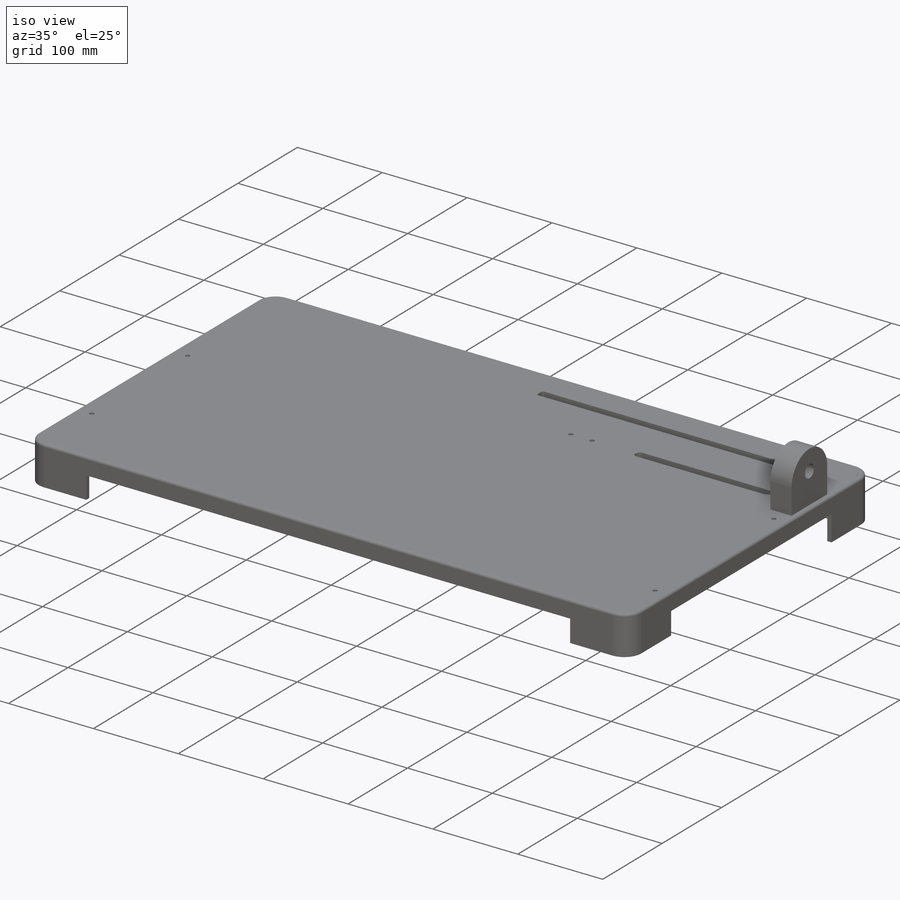
[diagram: iso view]
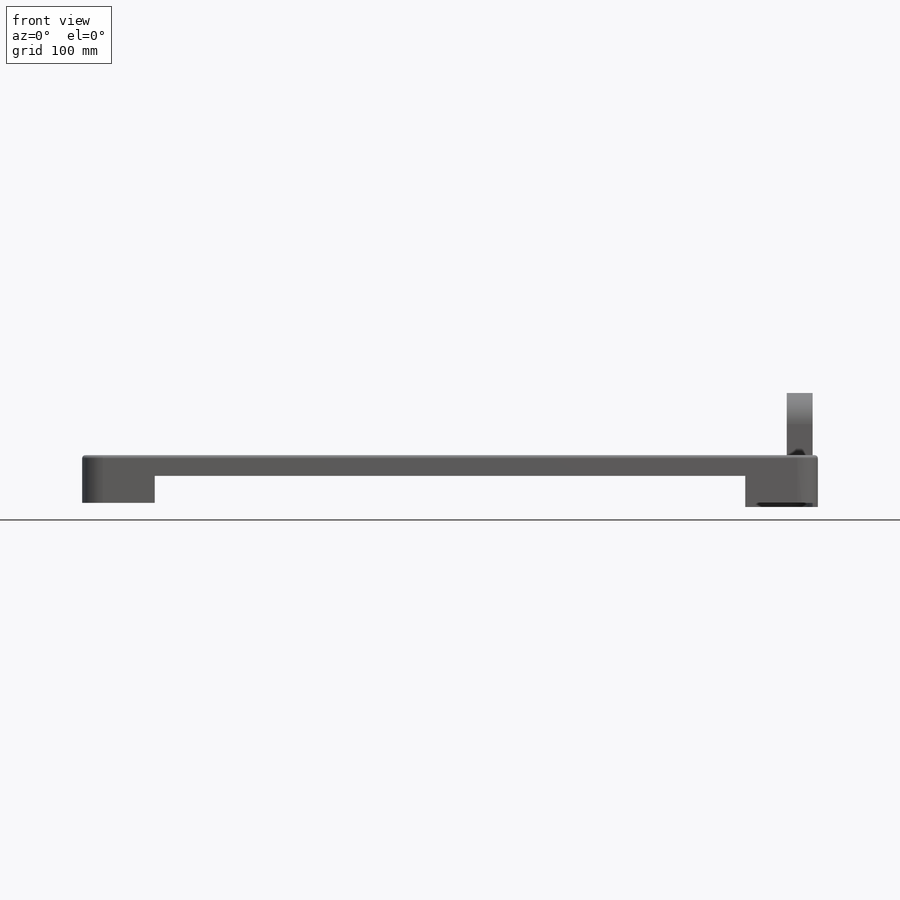
[diagram: front view]
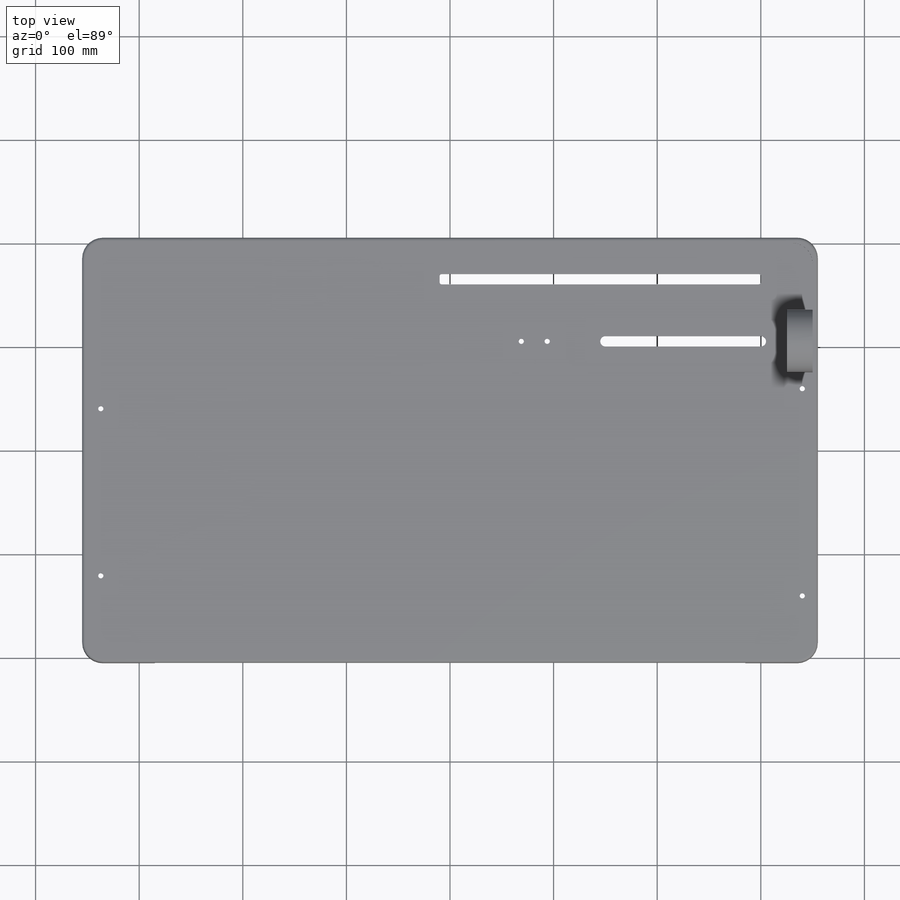
[diagram: top view]
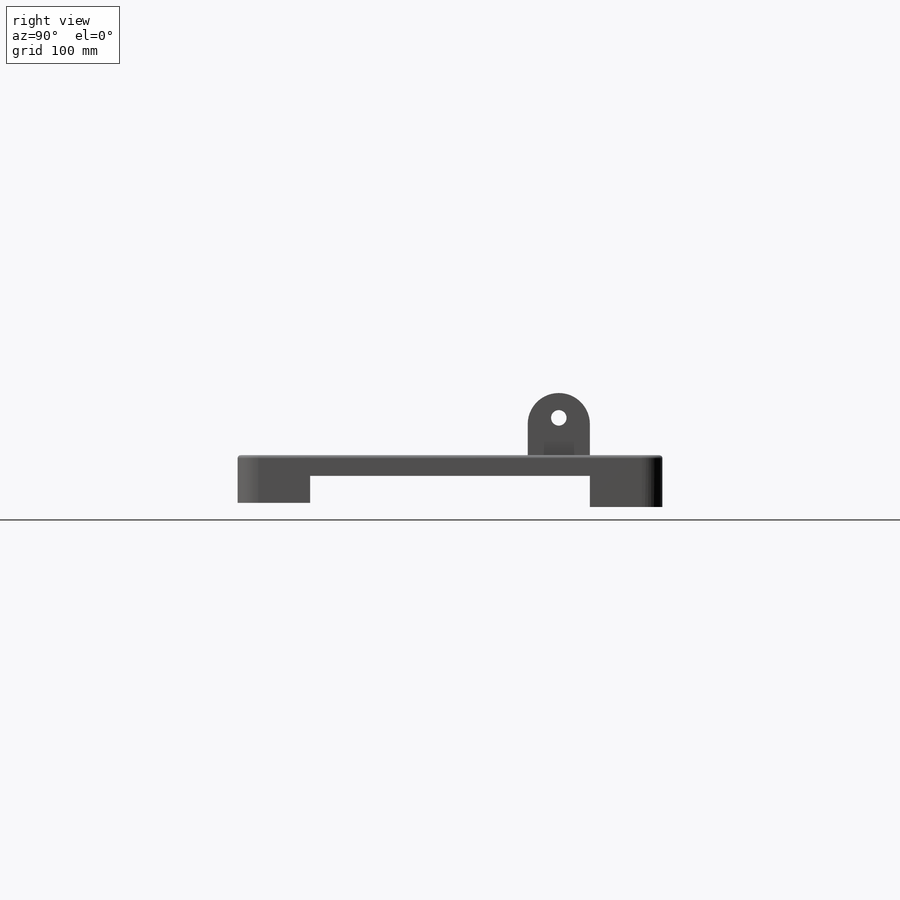
[diagram: right view]
SOLIDWORKS PART (.sldprt)
format: sldprt  version: not decoded by parser v0  size: 691,712 bytes
history: native  units: mm
features: sketch x17, fillet x8, extrude x6, thread x6, cut_extrude x3, hole x3, mirror x2, pattern_linear x2, material x1, plane x1 (+17 scaffold rows collapsed)
feature tree (66):
  scaffold x17  (default folders/planes/origin — collapsed)
  material  "Cast Alloy Steel"
  sketch  "Sketch1"  dims[D1=700.0mm D2=400.0mm D3=350.0mm D4=200.0mm]
  extrude  "Boss-Extrude1"  Depth=6mm
  sketch  "Sketch3"  dims[D1=310.0mm D2=10.0mm D3=30.0mm D4=50.0mm]
  cut_extrude  "Cut-Extrude1"  Depth=26mm
  fillet  "Fillet1"  Radius=2mm
  sketch  "Sketch4"  dims[D1=155.0mm]
  sketch  "Sketch5"
  plane  "Plane1"  Offset=165mm
  fillet  "Fillet2"  Radius=20mm
  sketch  "Sketch8"  dims[D3=20.0mm D1=5.0mm D2=5.0mm D4=50.0mm D5=50.0mm]
  extrude  "Boss-Extrude2"  Depth=40mm
  mirror  "Mirror3"
  mirror  "Mirror6"
  sketch  "Sketch9"  dims[D5=20.0mm D1=5.0mm D2=5.0mm D3=70.0mm D4=70.0mm]
  extrude  "Boss-Extrude3"  Depth=50mm
  sketch  "Sketch10"
  extrude  "Boss-Extrude4"  Depth=20mm
  sketch  "Sketch11"
  extrude  "Boss-Extrude5"  Depth=20mm
  pattern_linear  "LPattern1"  Count1=1 Count2=2 Spacing1=705mm Spacing2=405mm
  pattern_linear  "LPattern2"  Count1=2 Count2=1 Spacing1=705mm Spacing2=405mm
  fillet  "Fillet3"  Radius=3mm
  fillet  "Fillet4"  Radius=3mm
  fillet  "Fillet5"  Radius=3mm
  fillet  "Fillet6"  Radius=3mm
  fillet  "Fillet7"  Radius=3mm
  hole  "Ø5.0 (5) Diameter Hole1"  Diameter=5mm Depth=11mm
  sketch  "Sketch13"  dims[D1=25.0mm D2=78.81mm D3=55.0mm]
  sketch  "Sketch12"  dims[hole-wizard template sketch: 50 standard entries collapsed; hole parameters above]
  thread  "Cosmetic Thread1"  Diameter=6mm  [1 undecoded]
  sketch  "Sketch14"  dims[D1=60.0mm D2=25.0mm D3=30.0mm D4=0.0mm]
  extrude  "Boss-Extrude6"  Depth=60mm
  fillet  "Fillet8"  Radius=30mm
  sketch  "Sketch15"  dims[D1=5.0mm D2=150.0mm D3=5.0mm D4=10.0mm]
  cut_extrude  "Cut-Extrude2"  Depth=60mm
  sketch  "Sketch16"  dims[D1=15.0mm D2=30.0mm D3=36.0mm]
  cut_extrude  "Cut-Extrude3"  [1 undecoded]
  thread  "Cosmetic Thread2"  Diameter=18mm  [1 undecoded]
  hole  "Ø5.0 (5) Diameter Hole2"  Diameter=5mm Depth=11mm
  sketch  "Sketch18"  dims[D1=12.0mm D2=61.33mm D3=200.0mm D4=12.0mm]
  sketch  "Sketch17"  dims[hole-wizard template sketch: 50 standard entries collapsed; hole parameters above]
  thread  "Cosmetic Thread3"  Diameter=6mm  [1 undecoded]
  thread  "Cosmetic Thread4"  Diameter=6mm  [1 undecoded]
  hole  "Ø5.0 (5) Diameter Hole3"  Diameter=5mm Depth=11mm
  sketch  "Sketch20"  dims[D1=161.29mm D2=162.0mm D3=15.0mm D4=15.0mm]
  sketch  "Sketch19"  dims[hole-wizard template sketch: 50 standard entries collapsed; hole parameters above]
  thread  "Cosmetic Thread5"  Diameter=6mm  [1 undecoded]
  thread  "Cosmetic Thread6"  Diameter=6mm  [1 undecoded]
decode coverage: 41 of 47 modeling features carry decoded parameters
note: ~ marks probable driven/reference dimensions
note: 7 parameter values undecoded
note: suppression state not decoded; provenance and decode notes live in map.json
